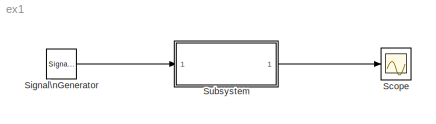
MODEL ex1
KIND model
CONFIG AbsTol = auto
CONFIG FixedStep = auto
CONFIG MaxStep = auto
CONFIG MinStep = auto
CONFIG RelTol = 1e-3
CONFIG Solver = ode45
CONFIG SolverMode = Auto
CONFIG StartTime = 0.0
CONFIG StopTime = 10.0
BLOCK [Scope] Scope
  DataFormat = StructureWithTime
  NumInputPorts = 1
  Ports = [1]
BLOCK [SignalGenerator] Signal\nGenerator
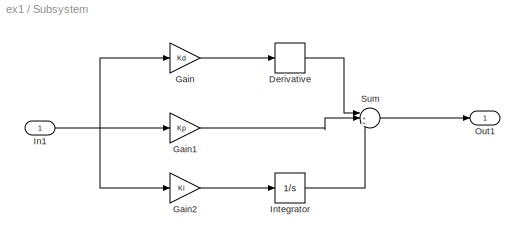
BLOCK [SubSystem] Subsystem
  MaskCallbackString = ||
  MaskEnableString = on,on,on
  MaskIconFrame = on
  MaskIconOpaque = on
  MaskIconRotate = none
  MaskIconUnits = autoscale
  MaskPromptString = constelem prop|const elem derivativ|const elem integrator
  MaskStyleString = edit,edit,edit
  MaskToolTipString = on,on,on
  MaskTunableValueString = on,on,on
  MaskValueString = 0.1|1|1
  MaskVarAliasString = ,,
  MaskVariables = Kp=@1;Kd=@2;Ki=@3;
  MaskVisibilityString = on,on,on
  Ports = [1, 1]
  TreatAsAtomicUnit = off
BLOCK [Derivative] Subsystem/Derivative
BLOCK [Gain] Subsystem/Gain
  Gain = Kd
BLOCK [Gain] Subsystem/Gain1
  Gain = Kp
BLOCK [Gain] Subsystem/Gain2
  Gain = Ki
BLOCK [Inport] Subsystem/In1
BLOCK [Integrator] Subsystem/Integrator
  Ports = [1, 1]
BLOCK [Outport] Subsystem/Out1
BLOCK [Sum] Subsystem/Sum
  IconShape = round
  InputSameDT = off
  Inputs = |+++
  OutDataTypeMode = Inherit via internal rule
  Ports = [3, 1]
LINE Signal\nGenerator:1 -> Subsystem:1
LINE Subsystem/Derivative:1 -> Subsystem/Sum:1
LINE Subsystem/Gain1:1 -> Subsystem/Sum:2
LINE Subsystem/Gain2:1 -> Subsystem/Integrator:1
LINE Subsystem/Gain:1 -> Subsystem/Derivative:1
NET Subsystem/In1:1 -> Subsystem/Gain1:1, Subsystem/Gain2:1, Subsystem/Gain:1
LINE Subsystem/Integrator:1 -> Subsystem/Sum:3
LINE Subsystem/Sum:1 -> Subsystem/Out1:1
LINE Subsystem:1 -> Scope:1
note: NET lines group one-source signal fan-out (src -> all destinations, sorted); 1:1 wires keep LINE
